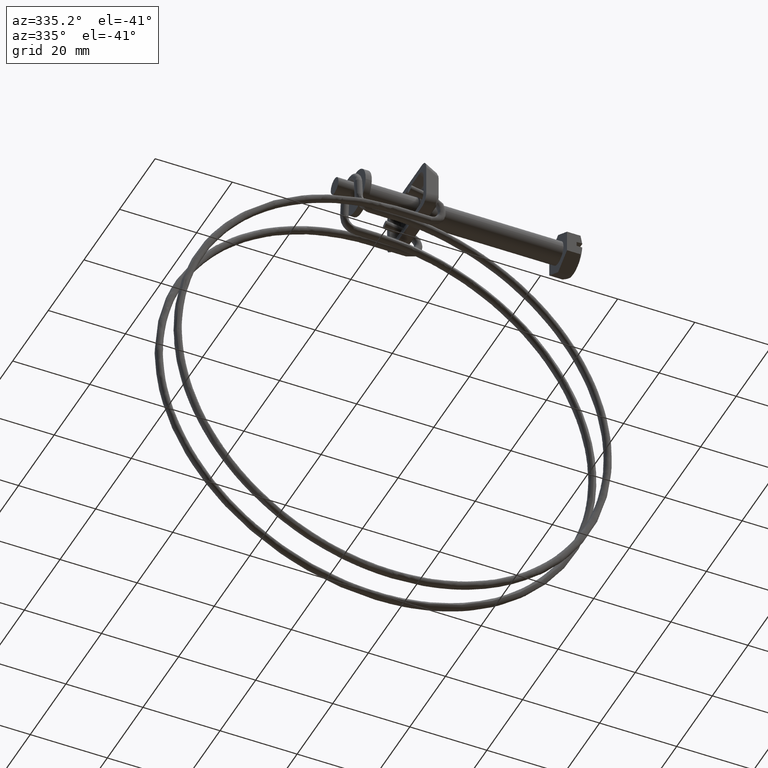
[diagram: clean part render]
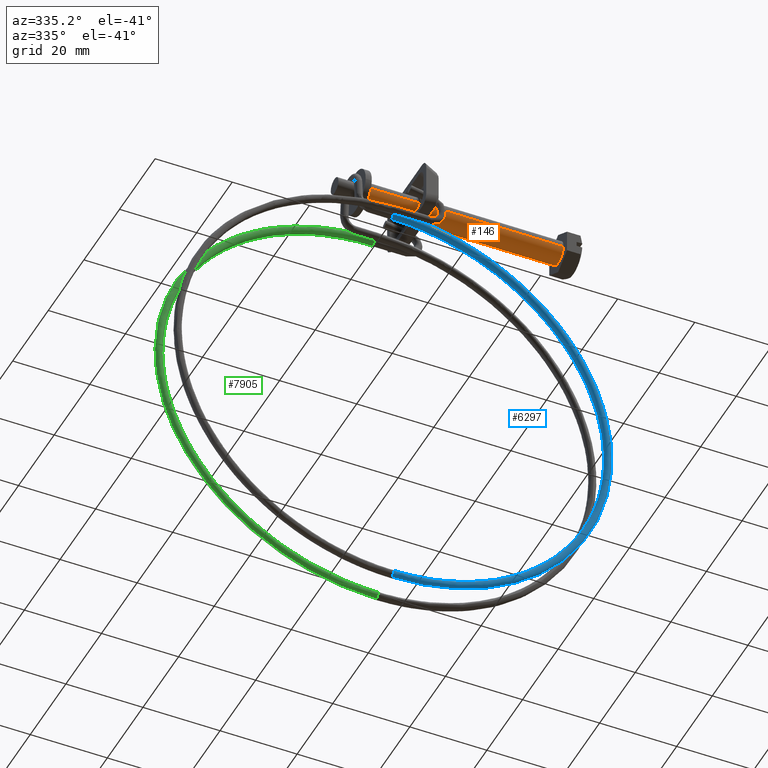
[diagram: same view with three faces highlighted in distinct colors, each labeled with its STEP entity id]
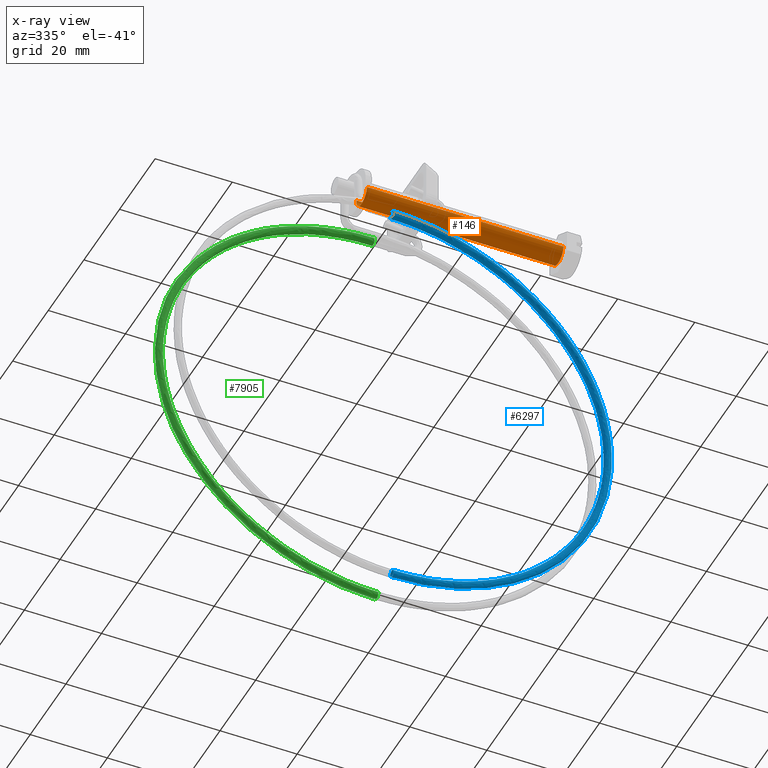
[diagram: x-ray of the same camera — body ghosted, the three highlighted faces saturated]
A machine part, auxiliary view with three faces highlighted in distinct colors.
The next image is the same camera in x-ray (body ghosted, the three faces saturated) — at least one of them is partly hidden behind the body in this view.
Their STEP definitions:

[orange] entity #146 — the highlighted face is a freeform B-spline surface patch.
#44=CARTESIAN_POINT('',(1.275000000000002,2.979028579091114,0.354102703970289));
#45=CARTESIAN_POINT('',(1.275000000000001,2.989162846345932,0.268844185913943));
#46=CARTESIAN_POINT('',(1.275000000000001,2.994404395265715,0.183145618604578));
#47=CARTESIAN_POINT('',(1.275000000000001,3.177550013870294,-2.811258776661137));
#48=CARTESIAN_POINT('',(1.275000000000001,0.183145618604578,-2.994404395265715));
#49=CARTESIAN_POINT('',(1.275000000000001,-2.811258776661137,-3.177550013870294));
#50=CARTESIAN_POINT('',(1.275000000000001,-2.994404395265715,-0.183145618604578));
#51=CARTESIAN_POINT('',(-52.306875000000026,2.979028579091114,0.354102703970289));
#52=CARTESIAN_POINT('',(-52.306875000000019,2.989162846345932,0.268844185913943));
#53=CARTESIAN_POINT('',(-52.306875000000012,2.994404395265715,0.183145618604578));
#54=CARTESIAN_POINT('',(-52.306875000000019,3.177550013870294,-2.811258776661137));
#55=CARTESIAN_POINT('',(-52.306875000000012,0.183145618604578,-2.994404395265715));
#56=CARTESIAN_POINT('',(-52.306875000000019,-2.811258776661137,-3.177550013870294));
#57=CARTESIAN_POINT('',(-52.306875000000012,-2.994404395265715,-0.183145618604578));
#65=(BOUNDED_SURFACE()B_SPLINE_SURFACE(2,1,((#44,#51),(#45,#52),(#46,#53),(#47,#54),(#48,#55),(#49,#56),(#50,#57)),.UNSPECIFIED.,.F.,.F.,.U.)B_SPLINE_SURFACE_WITH_KNOTS((3,2,2,3),(2,2),(0.0,0.198822509939094,5.169385258416424,10.139948006893750),(0.0,53.581875000000032),.UNSPECIFIED.)GEOMETRIC_REPRESENTATION_ITEM()RATIONAL_B_SPLINE_SURFACE(((0.977505800795127,0.977505800795127),(0.988284271247462,0.988284271247462),(1.0,1.0),(0.707106781186548,0.707106781186548),(1.0,1.0),(0.707106781186548,0.707106781186548),(1.0,1.0)))REPRESENTATION_ITEM('')SURFACE());
#66=CARTESIAN_POINT('',(1.703657E-015,2.979028579084389,0.354102704026857));
#67=VERTEX_POINT('',#66);
#68=CARTESIAN_POINT('',(0.0,0.0,-3.000000000000115));
#69=VERTEX_POINT('',#68);
#70=CARTESIAN_POINT('',(1.703657E-015,2.979028579084389,0.354102704026857));
#71=CARTESIAN_POINT('',(0.0,3.000000000000115,0.177672359012903));
#72=CARTESIAN_POINT('',(0.0,3.000000000000115,0.0));
#73=CARTESIAN_POINT('',(0.0,3.000000000000114,-3.000000000000114));
#74=CARTESIAN_POINT('',(0.0,0.0,-3.000000000000115));
#82=(BOUNDED_CURVE()B_SPLINE_CURVE(2,(#70,#71,#72,#73,#74),.UNSPECIFIED.,.F.,.U.)B_SPLINE_CURVE_WITH_KNOTS((3,2,3),(0.729562473509226,0.750000000000000,1.0),.UNSPECIFIED.)CURVE()GEOMETRIC_REPRESENTATION_ITEM()RATIONAL_B_SPLINE_CURVE((0.956026754175306,0.976055948326128,1.0,0.707106781186547,1.0))REPRESENTATION_ITEM(''));
#83=EDGE_CURVE('',#67,#69,#82,.T.);
#84=ORIENTED_EDGE('',*,*,#83,.T.);
#85=CARTESIAN_POINT('',(1.665335E-015,-2.994404395227453,-0.183145619230161));
#86=VERTEX_POINT('',#85);
#87=CARTESIAN_POINT('',(0.0,0.0,-3.000000000000115));
#88=CARTESIAN_POINT('',(0.0,-2.822118199535807,-3.000000000000114));
#89=CARTESIAN_POINT('',(1.665335E-015,-2.994404395227453,-0.183145619230161));
#97=(BOUNDED_CURVE()B_SPLINE_CURVE(2,(#87,#88,#89),.UNSPECIFIED.,.F.,.U.)B_SPLINE_CURVE_WITH_KNOTS((3,3),(0.0,0.239332962169872),.UNSPECIFIED.)CURVE()GEOMETRIC_REPRESENTATION_ITEM()RATIONAL_B_SPLINE_CURVE((1.0,0.719603993367632,0.976072041518686))REPRESENTATION_ITEM(''));
#98=EDGE_CURVE('',#69,#86,#97,.T.);
#99=ORIENTED_EDGE('',*,*,#98,.T.);
#100=CARTESIAN_POINT('',(-51.0,-2.994404395227453,-0.183145619230161));
#101=VERTEX_POINT('',#100);
#102=CARTESIAN_POINT('',(1.665335E-015,-2.994404395227453,-0.183145619230161));
#103=CARTESIAN_POINT('',(-51.0,-2.994404395227453,-0.183145619230161));
#104=QUASI_UNIFORM_CURVE('',1,(#102,#103),.UNSPECIFIED.,.F.,.U.);
#105=EDGE_CURVE('',#86,#101,#104,.T.);
#106=ORIENTED_EDGE('',*,*,#105,.T.);
#107=CARTESIAN_POINT('',(-51.0,0.0,-3.000000000000115));
#108=VERTEX_POINT('',#107);
#109=CARTESIAN_POINT('',(-51.0,0.0,-3.000000000000115));
#110=CARTESIAN_POINT('',(-51.000000000000007,-2.822118199535797,-3.000000000000114));
#111=CARTESIAN_POINT('',(-51.0,-2.994404395227453,-0.183145619230161));
#119=(BOUNDED_CURVE()B_SPLINE_CURVE(2,(#109,#110,#111),.UNSPECIFIED.,.F.,.U.)B_SPLINE_CURVE_WITH_KNOTS((3,3),(0.500000000000000,0.739332962169871),.UNSPECIFIED.)CURVE()GEOMETRIC_REPRESENTATION_ITEM()RATIONAL_B_SPLINE_CURVE((1.0,0.719603993367632,0.976072041518684))REPRESENTATION_ITEM(''));
#120=EDGE_CURVE('',#108,#101,#119,.T.);
#121=ORIENTED_EDGE('',*,*,#120,.F.);
#122=CARTESIAN_POINT('',(-51.0,2.979028579084390,0.354102704026858));
#123=VERTEX_POINT('',#122);
#124=CARTESIAN_POINT('',(-51.0,2.979028579084390,0.354102704026858));
#125=CARTESIAN_POINT('',(-51.0,3.000000000000115,0.177672359012904));
#126=CARTESIAN_POINT('',(-51.0,3.000000000000115,0.0));
#127=CARTESIAN_POINT('',(-50.999999999999993,3.000000000000114,-3.000000000000114));
#128=CARTESIAN_POINT('',(-51.0,0.0,-3.000000000000115));
#136=(BOUNDED_CURVE()B_SPLINE_CURVE(2,(#124,#125,#126,#127,#128),.UNSPECIFIED.,.F.,.U.)B_SPLINE_CURVE_WITH_KNOTS((3,2,3),(0.229562473509226,0.250000000000000,0.500000000000000),.UNSPECIFIED.)CURVE()GEOMETRIC_REPRESENTATION_ITEM()RATIONAL_B_SPLINE_CURVE((0.956026754175305,0.976055948326128,1.0,0.707106781186547,1.0))REPRESENTATION_ITEM(''));
#137=EDGE_CURVE('',#123,#108,#136,.T.);
#138=ORIENTED_EDGE('',*,*,#137,.F.);
#139=CARTESIAN_POINT('',(1.703657E-015,2.979028579084389,0.354102704026857));
#140=CARTESIAN_POINT('',(-51.0,2.979028579084390,0.354102704026858));
#141=QUASI_UNIFORM_CURVE('',1,(#139,#140),.UNSPECIFIED.,.F.,.U.);
#142=EDGE_CURVE('',#67,#123,#141,.T.);
#143=ORIENTED_EDGE('',*,*,#142,.F.);
#144=EDGE_LOOP('',(#84,#99,#106,#121,#138,#143));
#145=FACE_OUTER_BOUND('',#144,.T.);
#146=ADVANCED_FACE('',(#145),#65,.T.);

[blue] entity #6297 — the highlighted face is a freeform B-spline surface patch.
#5517=CARTESIAN_POINT('',(-45.149984246528383,-5.033984230270498,-8.529168529454086));
#5518=VERTEX_POINT('',#5517);
#5524=CARTESIAN_POINT('',(-45.150023195266257,-4.300001999997133,-6.850001000269010));
#5525=VERTEX_POINT('',#5524);
#5526=CARTESIAN_POINT('',(-45.150023195266257,-4.300001999997133,-6.850001000269010));
#5527=CARTESIAN_POINT('',(-45.150023195266272,-4.365451846946917,-6.850001000269011));
#5528=CARTESIAN_POINT('',(-45.150023045747560,-4.430900075520263,-6.856447088146706));
#5529=CARTESIAN_POINT('',(-45.150022453403942,-4.559284568506255,-6.881984351574516));
#5530=CARTESIAN_POINT('',(-45.150022010593702,-4.622217658359316,-6.901074895665468));
#5531=CARTESIAN_POINT('',(-45.150020848669897,-4.743153206365127,-6.951168039809021));
#5532=CARTESIAN_POINT('',(-45.150020129585059,-4.801152674148134,-6.982169401209919));
#5533=CARTESIAN_POINT('',(-45.150018442733142,-4.909991791885335,-7.054893374632335));
#5534=CARTESIAN_POINT('',(-45.150017475007772,-4.960828750577864,-7.096614188410303));
#5535=CARTESIAN_POINT('',(-45.150015328052497,-5.053388811789496,-7.189174249597036));
#5536=CARTESIAN_POINT('',(-45.150014148875719,-5.095109625578688,-7.240011208275889));
#5537=CARTESIAN_POINT('',(-45.150011624323419,-5.167833599020669,-7.348850325983813));
#5538=CARTESIAN_POINT('',(-45.150010279010310,-5.198834960429906,-7.406849793751216));
#5539=CARTESIAN_POINT('',(-45.150007473878077,-5.248928104586936,-7.527785341724491));
#5540=CARTESIAN_POINT('',(-45.150006014128302,-5.268018648683025,-7.590718431560624));
#5541=CARTESIAN_POINT('',(-45.150003036215800,-5.293555912117705,-7.719102924512079));
#5542=CARTESIAN_POINT('',(-45.150001518126722,-5.300001999997138,-7.784551153067816));
#5543=CARTESIAN_POINT('',(-45.149998481873482,-5.300001999997135,-7.915450846932179));
#5544=CARTESIAN_POINT('',(-45.149996963784382,-5.293555912117706,-7.980899075487916));
#5545=CARTESIAN_POINT('',(-45.149993985871873,-5.268018648683026,-8.109283568439372));
#5546=CARTESIAN_POINT('',(-45.149992526122112,-5.248928104586938,-8.172216658275501));
#5547=CARTESIAN_POINT('',(-45.149989720989844,-5.198834960429908,-8.293152206248779));
#5548=CARTESIAN_POINT('',(-45.149988375676763,-5.167833599020673,-8.351151674016187));
#5549=CARTESIAN_POINT('',(-45.149986100363719,-5.102289382286861,-8.449245526463013));
#5550=CARTESIAN_POINT('',(-45.149985140849729,-5.069655623589052,-8.490612328675056));
#5551=CARTESIAN_POINT('',(-45.149984246528383,-5.033984230270498,-8.529168529454086));
#5552=B_SPLINE_CURVE_WITH_KNOTS('',3,(#5526,#5527,#5528,#5529,#5530,#5531,#5532,#5533,#5534,#5535,#5536,#5537,#5538,#5539,#5540,#5541,#5542,#5543,#5544,#5545,#5546,#5547,#5548,#5549,#5550,#5551),.UNSPECIFIED.,.F.,.U.,(4,2,2,2,2,2,2,2,2,2,2,2,4),(0.0,0.031250000000000,0.062500000000000,0.093750000000000,0.125000000000000,0.156250000000000,0.187500000000000,0.218750000000000,0.250000000000000,0.281250000000000,0.312500000000000,0.343750000000000,0.368829616658411),.UNSPECIFIED.);
#5553=EDGE_CURVE('',#5525,#5518,#5552,.T.);
#5555=CARTESIAN_POINT('',(-45.150023193396613,-4.287435961514357,-6.850080066701368));
#5556=VERTEX_POINT('',#5555);
#5557=CARTESIAN_POINT('',(-45.150023193396613,-4.287435961514357,-6.850080066701368));
#5558=CARTESIAN_POINT('',(-45.150023194653834,-4.291624416094797,-6.850027403508757));
#5559=CARTESIAN_POINT('',(-45.150023195266257,-4.295813204731521,-6.850001000269010));
#5560=CARTESIAN_POINT('',(-45.150023195266257,-4.300001999997133,-6.850001000269010));
#5561=B_SPLINE_CURVE_WITH_KNOTS('',3,(#5557,#5558,#5559,#5560),.UNSPECIFIED.,.F.,.U.,(4,4),(0.997999997583634,1.0),.UNSPECIFIED.);
#5562=EDGE_CURVE('',#5556,#5525,#5561,.T.);
#5683=CARTESIAN_POINT('',(-45.149998382379913,-3.302437946023920,-7.919734138251699));
#5684=VERTEX_POINT('',#5683);
#5700=CARTESIAN_POINT('',(-45.149976804733733,-4.300001999997136,-8.850000999730989));
#5701=VERTEX_POINT('',#5700);
#5702=CARTESIAN_POINT('',(-45.149976804733733,-4.300001999997136,-8.850000999730989));
#5703=CARTESIAN_POINT('',(-45.149976804728666,-4.234552096202423,-8.850001003707032));
#5704=CARTESIAN_POINT('',(-45.149976954241893,-4.169103805564644,-8.843554920170462));
#5705=CARTESIAN_POINT('',(-45.149977546573773,-4.040719180389779,-8.818017665988659));
#5706=CARTESIAN_POINT('',(-45.149977989377767,-3.977786020415552,-8.798927126802363));
#5707=CARTESIAN_POINT('',(-45.149979151288640,-3.856850326801788,-8.748833992843419));
#5708=CARTESIAN_POINT('',(-45.149979870366757,-3.798850783535598,-8.717832636722228));
#5709=CARTESIAN_POINT('',(-45.149981557205052,-3.690011512366994,-8.645108674031631));
#5710=CARTESIAN_POINT('',(-45.149982524923502,-3.639174475730044,-8.603387865705523));
#5711=CARTESIAN_POINT('',(-45.149984671864956,-3.546614259159843,-8.510827815385410));
#5712=CARTESIAN_POINT('',(-45.149985851034870,-3.504893367960352,-8.459990862121057));
#5713=CARTESIAN_POINT('',(-45.149988375573727,-3.432169243202981,-8.351151754996955));
#5714=CARTESIAN_POINT('',(-45.149989720880271,-3.401167807892398,-8.293152292398613));
#5715=CARTESIAN_POINT('',(-45.149992525999927,-3.351074522278122,-8.172216754319623));
#5716=CARTESIAN_POINT('',(-45.149993985743713,-3.331983910629633,-8.109283669208471));
#5717=CARTESIAN_POINT('',(-45.149996434416281,-3.310984992358337,-8.003715506919454));
#5718=CARTESIAN_POINT('',(-45.149997406241951,-3.305381541010549,-7.961817775016692));
#5719=CARTESIAN_POINT('',(-45.149998382379913,-3.302437946023920,-7.919734138251699));
#5720=B_SPLINE_CURVE_WITH_KNOTS('',3,(#5702,#5703,#5704,#5705,#5706,#5707,#5708,#5709,#5710,#5711,#5712,#5713,#5714,#5715,#5716,#5717,#5718,#5719),.UNSPECIFIED.,.F.,.U.,(4,2,2,2,2,2,2,2,4),(0.500000000000000,0.531250000000000,0.562500000000000,0.593750000000000,0.625000000000000,0.656250000000000,0.687500000000000,0.718750000000000,0.738892582117169),.UNSPECIFIED.);
#5721=EDGE_CURVE('',#5701,#5684,#5720,.T.);
#5723=CARTESIAN_POINT('',(-45.149984246528383,-5.033984230270498,-8.529168529454086));
#5724=CARTESIAN_POINT('',(-45.149984026512122,-5.025207223097874,-8.538653924320116));
#5725=CARTESIAN_POINT('',(-45.149983810430598,-5.016246878140431,-8.547969684042037));
#5726=CARTESIAN_POINT('',(-45.149982524992353,-4.960828750577867,-8.603387811589695));
#5727=CARTESIAN_POINT('',(-45.149981557266983,-4.909991791885341,-8.645108625367662));
#5728=CARTESIAN_POINT('',(-45.149979870415031,-4.801152674148138,-8.717832598790080));
#5729=CARTESIAN_POINT('',(-45.149979151330207,-4.743153206365133,-8.748833960190980));
#5730=CARTESIAN_POINT('',(-45.149977989406374,-4.622217658359322,-8.798927104334533));
#5731=CARTESIAN_POINT('',(-45.149977546596112,-4.559284568506262,-8.818017648425485));
#5732=CARTESIAN_POINT('',(-45.149976954252473,-4.430900075520269,-8.843554911853291));
#5733=CARTESIAN_POINT('',(-45.149976804733740,-4.365451846946924,-8.850000999730991));
#5734=CARTESIAN_POINT('',(-45.149976804733733,-4.300001999997136,-8.850000999730989));
#5735=B_SPLINE_CURVE_WITH_KNOTS('',3,(#5723,#5724,#5725,#5726,#5727,#5728,#5729,#5730,#5731,#5732,#5733,#5734),.UNSPECIFIED.,.F.,.U.,(4,2,2,2,2,4),(0.368829616658411,0.375000000000000,0.406250000000000,0.437500000000000,0.468750000000000,0.500000000000000),.UNSPECIFIED.);
#5736=EDGE_CURVE('',#5518,#5701,#5735,.T.);
#6144=CARTESIAN_POINT('',(-45.149999999935943,-3.302485887030367,-119.780271342113590));
#6145=VERTEX_POINT('',#6144);
#6146=CARTESIAN_POINT('',(-45.149999999990129,-4.287435984471163,-120.849920191922910));
#6147=VERTEX_POINT('',#6146);
#6159=CARTESIAN_POINT('',(-45.149999999935943,-3.302485887030366,-119.780271342113560));
#6160=CARTESIAN_POINT('',(10.780266748424555,-3.302485887030020,-119.780271342049470));
#6161=CARTESIAN_POINT('',(10.780266748424541,-3.302461916526797,-63.850002740182589));
#6162=CARTESIAN_POINT('',(10.780266748424543,-3.302437946024267,-7.919735755871773));
#6163=CARTESIAN_POINT('',(-45.149998382379920,-3.302437946023921,-7.919734138251701));
#6171=(BOUNDED_CURVE()B_SPLINE_CURVE(2,(#6159,#6160,#6161,#6162,#6163),.UNSPECIFIED.,.F.,.U.)B_SPLINE_CURVE_WITH_KNOTS((3,2,3),(-3.793812489433229,-2.0,-0.206187546034046),.UNSPECIFIED.)CURVE()GEOMETRIC_REPRESENTATION_ITEM()RATIONAL_B_SPLINE_CURVE((0.913747050125409,0.668278774897888,0.977505800795127,0.668278781011928,0.913747040418608))REPRESENTATION_ITEM(''));
#6172=EDGE_CURVE('',#6145,#5684,#6171,.T.);
#6176=CARTESIAN_POINT('',(-45.149999999990129,-4.287435984471163,-120.849920191922920));
#6177=CARTESIAN_POINT('',(11.849921044203803,-4.287435984471165,-120.849920191912840));
#6178=CARTESIAN_POINT('',(11.849921044187241,-4.287435972992762,-63.850000129309592));
#6179=CARTESIAN_POINT('',(11.849921044170671,-4.287435961514353,-6.850056873328644));
#6180=CARTESIAN_POINT('',(-45.150023193396606,-4.287435961514357,-6.850080066701368));
#6188=(BOUNDED_CURVE()B_SPLINE_CURVE(2,(#6176,#6177,#6178,#6179,#6180),.UNSPECIFIED.,.F.,.U.)B_SPLINE_CURVE_WITH_KNOTS((3,2,3),(-3.793812489434421,-2.0,-0.206187011560386),.UNSPECIFIED.)CURVE()GEOMETRIC_REPRESENTATION_ITEM()RATIONAL_B_SPLINE_CURVE((0.934774043675721,0.683657093752373,1.0,0.683657005751675,0.934774183387873))REPRESENTATION_ITEM(''));
#6189=EDGE_CURVE('',#6147,#5556,#6188,.T.);
#6194=CARTESIAN_POINT('',(-53.220581188782397,-4.266618133467630,-120.275411002451250));
#6195=CARTESIAN_POINT('',(11.849659425907566,-4.266618133467630,-129.582470708914090));
#6196=CARTESIAN_POINT('',(11.849659425907559,-4.266618133467632,-63.850001000000042));
#6197=CARTESIAN_POINT('',(11.849659425907539,-4.266618133467630,1.882494594913314));
#6198=CARTESIAN_POINT('',(-53.220603185711774,-4.266618133467630,-7.424594143795318));
#6199=CARTESIAN_POINT('',(-53.220599629841495,-4.276981970721224,-120.275539932982540));
#6200=CARTESIAN_POINT('',(11.849789668583252,-4.276981970721224,-129.582620905824400));
#6201=CARTESIAN_POINT('',(11.849789668583238,-4.276981970721225,-63.850001000000020));
#6202=CARTESIAN_POINT('',(11.849789668583227,-4.276981970721225,1.882644791882771));
#6203=CARTESIAN_POINT('',(-53.220621626821149,-4.276981970721224,-7.424465213271176));
#6204=CARTESIAN_POINT('',(-53.222397456771425,-5.287357004320464,-120.288109426958400));
#6205=CARTESIAN_POINT('',(11.862487084087164,-5.287357004320462,-129.597263668402260));
#6206=CARTESIAN_POINT('',(11.862487084087142,-5.287357004320464,-63.850001000000006));
#6207=CARTESIAN_POINT('',(11.862487084087135,-5.287357004320461,1.897287560227058));
#6208=CARTESIAN_POINT('',(-53.222419458651160,-5.287357004320465,-7.411895719996198));
#6209=CARTESIAN_POINT('',(-53.080818646460997,-5.299923044203815,-119.298262198790010));
#6210=CARTESIAN_POINT('',(10.862566039883333,-5.299923044203816,-128.444146607503480));
#6211=CARTESIAN_POINT('',(10.862566039883330,-5.299923044203815,-63.850001000000013));
#6212=CARTESIAN_POINT('',(10.862566039883314,-5.299923044203815,0.744170045221102));
#6213=CARTESIAN_POINT('',(-53.080840262457855,-5.299923044203815,-8.401742892971354));
#6214=CARTESIAN_POINT('',(-52.939239836150570,-5.312489084087169,-118.308414970621540));
#6215=CARTESIAN_POINT('',(9.862644995679526,-5.312489084087168,-127.291029546604720));
#6216=CARTESIAN_POINT('',(9.862644995679510,-5.312489084087169,-63.850001000000006));
#6217=CARTESIAN_POINT('',(9.862644995679505,-5.312489084087168,-0.408947469784854));
#6218=CARTESIAN_POINT('',(-52.939261066264564,-5.312489084087169,-9.391590065946508));
#6219=CARTESIAN_POINT('',(-52.937460610693435,-4.312568039883353,-118.295975528707910));
#6220=CARTESIAN_POINT('',(9.850078955796178,-4.312568039883353,-127.276538287458370));
#6221=CARTESIAN_POINT('',(9.850078955796157,-4.312568039883353,-63.850001000000013));
#6222=CARTESIAN_POINT('',(9.850078955796150,-4.312568039883353,-0.423438734637961));
#6223=CARTESIAN_POINT('',(-52.937481835957996,-4.312568039883353,-9.404029507166522));
#6224=CARTESIAN_POINT('',(-52.935780393012585,-3.368289162160302,-118.284228298946330));
#6225=CARTESIAN_POINT('',(9.838212172806395,-3.368289162160302,-127.262853417035030));
#6226=CARTESIAN_POINT('',(9.838212172806381,-3.368289162160303,-63.850001000000013));
#6227=CARTESIAN_POINT('',(9.838212172806369,-3.368289162160303,-0.437123610450506));
#6228=CARTESIAN_POINT('',(-52.935801613697627,-3.368289162160303,-9.415776736273086));
#6229=CARTESIAN_POINT('',(-53.070671953200517,-3.301692778375506,-119.227321666255950));
#6230=CARTESIAN_POINT('',(10.790903535459181,-3.301692778375505,-128.361504825977620));
#6231=CARTESIAN_POINT('',(10.790903535459160,-3.301692778375506,-63.850001000000006));
#6232=CARTESIAN_POINT('',(10.790903535459154,-3.301692778375504,0.661528231150173));
#6233=CARTESIAN_POINT('',(-53.070693541541864,-3.301692778375508,-8.472683421549849));
#6234=CARTESIAN_POINT('',(-53.072165826066787,-3.300955248684328,-119.237766067594440));
#6235=CARTESIAN_POINT('',(10.801454230955725,-3.300955248684329,-128.373671973625870));
#6236=CARTESIAN_POINT('',(10.801454230955709,-3.300955248684329,-63.850001000000013));
#6237=CARTESIAN_POINT('',(10.801454230955700,-3.300955248684328,0.673695383589941));
#6238=CARTESIAN_POINT('',(-53.072187418479785,-3.300955248684330,-8.462239020793696));
#6246=(BOUNDED_SURFACE()B_SPLINE_SURFACE(2,2,((#6194,#6199,#6204,#6209,#6214,#6219,#6224,#6229,#6234),(#6195,#6200,#6205,#6210,#6215,#6220,#6225,#6230,#6235),(#6196,#6201,#6206,#6211,#6216,#6221,#6226,#6231,#6236),(#6197,#6202,#6207,#6212,#6217,#6222,#6227,#6232,#6237),(#6198,#6203,#6208,#6213,#6218,#6223,#6228,#6233,#6238)),.UNSPECIFIED.,.F.,.F.,.U.)B_SPLINE_SURFACE_WITH_KNOTS((3,2,3),(3,1,2,2,1,3),(0.0,104.072587771044200,208.145202266313790),(0.0,0.024603701993969,1.681457951486350,3.338312200978731,4.928892280491416,4.953414280444298),.UNSPECIFIED.)GEOMETRIC_REPRESENTATION_ITEM()RATIONAL_B_SPLINE_SURFACE(((0.999227528483232,0.994919005752852,0.700467390059671,0.990610483022471,0.700467390059671,0.990610483022471,0.712073113778183,0.972278171583317,0.976228849683706),(0.657726468687223,0.654890448501697,0.461072107965082,0.652054428316171,0.461072107965082,0.652054428316171,0.468711400779125,0.639987460461460,0.642587934809713),(1.008698722261114,1.004349361130557,0.707106781186548,1.0,0.707106781186548,1.0,0.718822509939086,0.981493925459763,0.985482050124398),(0.657726378562995,0.654890358766071,0.461072044787196,0.652054338969148,0.461072044787196,0.652054338969148,0.468711336554474,0.639987372767900,0.642587846759825),(0.999227703867622,0.994919180381010,0.700467513005689,0.990610656894398,0.700467513005689,0.990610656894398,0.712073238761238,0.972278342237557,0.976229021031368)))REPRESENTATION_ITEM('')SURFACE());
#6247=CARTESIAN_POINT('',(-45.150000000000013,-4.300002000000009,-118.850001000000010));
#6248=VERTEX_POINT('',#6247);
#6249=CARTESIAN_POINT('',(-45.150000000000013,-4.300002000000009,-118.850001000000010));
#6250=CARTESIAN_POINT('',(-45.149999999991010,-4.038195655369277,-118.850000495566110));
#6251=CARTESIAN_POINT('',(-45.149999999978633,-3.777998799462706,-118.957772896960290));
#6252=CARTESIAN_POINT('',(-45.149999999955142,-3.424196145409652,-119.311556064556400));
#6253=CARTESIAN_POINT('',(-45.149999999944150,-3.319730377688063,-119.542534340343100));
#6254=CARTESIAN_POINT('',(-45.149999999935943,-3.302485887030367,-119.780271342113590));
#6255=B_SPLINE_CURVE_WITH_KNOTS('',3,(#6249,#6250,#6251,#6252,#6253,#6254),.UNSPECIFIED.,.F.,.U.,(4,2,4),(0.500000000000000,0.625000000000000,0.738888458198402),.UNSPECIFIED.);
#6256=EDGE_CURVE('',#6248,#6145,#6255,.T.);
#6257=ORIENTED_EDGE('',*,*,#6256,.F.);
#6258=CARTESIAN_POINT('',(-45.150000000000013,-5.028951109210285,-120.534536542634600));
#6259=VERTEX_POINT('',#6258);
#6260=CARTESIAN_POINT('',(-45.150000000000013,-5.028951109210285,-120.534536542634600));
#6261=CARTESIAN_POINT('',(-45.150000000000013,-5.200678748661184,-120.351169005261300));
#6262=CARTESIAN_POINT('',(-45.150000000000013,-5.300002000000000,-120.101327862820100));
#6263=CARTESIAN_POINT('',(-45.150000000000013,-5.300002000000000,-119.588201612201000));
#6264=CARTESIAN_POINT('',(-45.150000000000013,-5.192228903609820,-119.328014341236600));
#6265=CARTESIAN_POINT('',(-45.150000000000013,-4.821988658763289,-118.957774096390200));
#6266=CARTESIAN_POINT('',(-45.150000000000013,-4.561801387799160,-118.850001000000010));
#6267=CARTESIAN_POINT('',(-45.150000000000013,-4.300002000000009,-118.850001000000010));
#6268=B_SPLINE_CURVE_WITH_KNOTS('',3,(#6260,#6261,#6262,#6263,#6264,#6265,#6266,#6267),.UNSPECIFIED.,.F.,.U.,(4,2,2,4),(0.130000262351228,0.250000000000000,0.375000000000000,0.500000000000000),.UNSPECIFIED.);
#6269=EDGE_CURVE('',#6259,#6248,#6268,.T.);
#6270=ORIENTED_EDGE('',*,*,#6269,.F.);
#6271=CARTESIAN_POINT('',(-45.150000000000013,-4.300002000000009,-120.850001000000010));
#6272=VERTEX_POINT('',#6271);
#6273=CARTESIAN_POINT('',(-45.150000000000013,-4.300002000000009,-120.850001000000010));
#6274=CARTESIAN_POINT('',(-45.150000000000013,-4.561801387799160,-120.850001000000010));
#6275=CARTESIAN_POINT('',(-45.150000000000013,-4.821988658763289,-120.742227903609800));
#6276=CARTESIAN_POINT('',(-45.150000000000013,-5.014513974615417,-120.549702587757590));
#6277=CARTESIAN_POINT('',(-45.150000000000013,-5.021795399815350,-120.542177274286600));
#6278=CARTESIAN_POINT('',(-45.150000000000013,-5.028951109210285,-120.534536542634600));
#6279=B_SPLINE_CURVE_WITH_KNOTS('',3,(#6273,#6274,#6275,#6276,#6277,#6278),.UNSPECIFIED.,.F.,.U.,(4,2,4),(0.0,0.125000000000000,0.130000262351228),.UNSPECIFIED.);
#6280=EDGE_CURVE('',#6272,#6259,#6279,.T.);
#6281=ORIENTED_EDGE('',*,*,#6280,.F.);
#6282=CARTESIAN_POINT('',(-45.149999999990129,-4.287435984471163,-120.849920191922910));
#6283=CARTESIAN_POINT('',(-45.149999999993419,-4.291624042898426,-120.849974639911810));
#6284=CARTESIAN_POINT('',(-45.149999999996723,-4.295812815059945,-120.850001617475900));
#6285=CARTESIAN_POINT('',(-45.150000000000013,-4.300002000000009,-120.850001000000010));
#6286=B_SPLINE_CURVE_WITH_KNOTS('',3,(#6282,#6283,#6284,#6285),.UNSPECIFIED.,.F.,.U.,(4,4),(0.997999815404182,1.0),.UNSPECIFIED.);
#6287=EDGE_CURVE('',#6147,#6272,#6286,.T.);
#6288=ORIENTED_EDGE('',*,*,#6287,.F.);
#6289=ORIENTED_EDGE('',*,*,#6189,.T.);
#6290=ORIENTED_EDGE('',*,*,#5562,.T.);
#6291=ORIENTED_EDGE('',*,*,#5553,.T.);
#6292=ORIENTED_EDGE('',*,*,#5736,.T.);
#6293=ORIENTED_EDGE('',*,*,#5721,.T.);
#6294=ORIENTED_EDGE('',*,*,#6172,.F.);
#6295=EDGE_LOOP('',(#6257,#6270,#6281,#6288,#6289,#6290,#6291,#6292,#6293,#6294));
#6296=FACE_OUTER_BOUND('',#6295,.T.);
#6297=ADVANCED_FACE('',(#6296),#6246,.T.);

[green] entity #7905 — the highlighted face is a freeform B-spline surface patch.
#5958=CARTESIAN_POINT('',(-45.150000000000013,5.975868420241465,-6.907995056497066));
#5959=VERTEX_POINT('',#5958);
#5965=CARTESIAN_POINT('',(-45.150000000000013,5.310976448142015,-7.892637509185571));
#5966=VERTEX_POINT('',#5965);
#5967=CARTESIAN_POINT('',(-45.150000000000013,5.310976448142015,-7.892637509185571));
#5968=CARTESIAN_POINT('',(-45.150000000000013,5.309785185116463,-7.866484776359789));
#5969=CARTESIAN_POINT('',(-45.150000000000013,5.309644575594670,-7.840279783131936));
#5970=CARTESIAN_POINT('',(-45.150000000000013,5.319957059163599,-7.552379721659783));
#5971=CARTESIAN_POINT('',(-45.150000000000013,5.436972750023571,-7.296118689217270));
#5972=CARTESIAN_POINT('',(-45.150000000000013,5.728292555442470,-7.024810893572020));
#5973=CARTESIAN_POINT('',(-45.150000000000013,5.847547963914557,-6.953617412477247));
#5974=CARTESIAN_POINT('',(-45.150000000000013,5.975868420241465,-6.907995056497066));
#5975=B_SPLINE_CURVE_WITH_KNOTS('',3,(#5967,#5968,#5969,#5970,#5971,#5972,#5973,#5974),.UNSPECIFIED.,.F.,.U.,(4,2,2,4),(0.737494793451711,0.750000000000000,0.875000000000000,0.940036109681468),.UNSPECIFIED.);
#5976=EDGE_CURVE('',#5966,#5959,#5975,.T.);
#6055=CARTESIAN_POINT('',(-45.150000000000013,6.274124154056111,-8.849357056546696));
#6056=VERTEX_POINT('',#6055);
#6057=CARTESIAN_POINT('',(-45.150000000000013,6.274124154056111,-8.849357056546696));
#6058=CARTESIAN_POINT('',(-45.150000000000013,6.012484647438876,-8.839963733500847));
#6059=CARTESIAN_POINT('',(-45.150000000000013,5.756320006590985,-8.722924707046024));
#6060=CARTESIAN_POINT('',(-45.150000000000013,5.417423683269938,-8.358811485096949));
#6061=CARTESIAN_POINT('',(-45.150000000000013,5.321684464792924,-8.127829179653764));
#6062=CARTESIAN_POINT('',(-45.150000000000013,5.310976448142015,-7.892637509185571));
#6063=B_SPLINE_CURVE_WITH_KNOTS('',3,(#6057,#6058,#6059,#6060,#6061,#6062),.UNSPECIFIED.,.F.,.U.,(4,2,4),(0.500000000000000,0.625000000000000,0.737494793451711),.UNSPECIFIED.);
#6064=EDGE_CURVE('',#6056,#5966,#6063,.T.);
#6066=CARTESIAN_POINT('',(-45.150000000000013,7.063047293310760,-7.192061947471613));
#6067=VERTEX_POINT('',#6066);
#6068=CARTESIAN_POINT('',(-45.150000000000013,7.063047293310760,-7.192061947471613));
#6069=CARTESIAN_POINT('',(-45.150000000000013,7.228084872618401,-7.381473228365195));
#6070=CARTESIAN_POINT('',(-45.150000000000013,7.318379524562656,-7.634717340918241));
#6071=CARTESIAN_POINT('',(-45.150000000000013,7.299967855068440,-8.147513167247210));
#6072=CARTESIAN_POINT('',(-45.150000000000013,7.182928284423550,-8.403665846679910));
#6073=CARTESIAN_POINT('',(-45.150000000000013,6.799641728569591,-8.760382952955519));
#6074=CARTESIAN_POINT('',(-45.150000000000013,6.535754957853460,-8.858750775531320));
#6075=CARTESIAN_POINT('',(-45.150000000000013,6.274124154056111,-8.849357056546696));
#6076=B_SPLINE_CURVE_WITH_KNOTS('',3,(#6068,#6069,#6070,#6071,#6072,#6073,#6074,#6075),.UNSPECIFIED.,.F.,.U.,(4,2,2,4),(0.130000262351488,0.250000000000000,0.375000000000000,0.500000000000000),.UNSPECIFIED.);
#6077=EDGE_CURVE('',#6067,#6056,#6076,.T.);
#6079=CARTESIAN_POINT('',(-45.150000000000013,6.345886880956230,-6.850644943452905));
#6080=VERTEX_POINT('',#6079);
#6090=CARTESIAN_POINT('',(-45.150000000000013,5.975868420241465,-6.907995056497066));
#6091=CARTESIAN_POINT('',(-45.150000000000013,6.094243663932693,-6.866122050416867));
#6092=CARTESIAN_POINT('',(-45.150000000000013,6.220325795856418,-6.845986976392004));
#6093=CARTESIAN_POINT('',(-45.150000000000013,6.345886880956230,-6.850644943452905));
#6094=B_SPLINE_CURVE_WITH_KNOTS('',3,(#6090,#6091,#6092,#6093),.UNSPECIFIED.,.F.,.U.,(4,4),(0.940036109681468,1.0),.UNSPECIFIED.);
#6095=EDGE_CURVE('',#5959,#6080,#6094,.T.);
#6670=CARTESIAN_POINT('',(-45.150000000000112,3.302485887032507,-119.919730657955500));
#6671=VERTEX_POINT('',#6670);
#6687=CARTESIAN_POINT('',(-45.149999997946651,4.306285019938812,-120.849961522101910));
#6688=VERTEX_POINT('',#6687);
#6689=CARTESIAN_POINT('',(-45.150000000000112,3.302485887032507,-119.919730657955500));
#6690=CARTESIAN_POINT('',(-45.149999999737013,3.320535383565215,-120.157462601634090));
#6691=CARTESIAN_POINT('',(-45.149999999384818,3.426078744590592,-120.388434106584700));
#6692=CARTESIAN_POINT('',(-45.149999998632033,3.782184756065111,-120.742202801552590));
#6693=CARTESIAN_POINT('',(-45.149999998234897,4.043596731422727,-120.849967568025600));
#6694=CARTESIAN_POINT('',(-45.149999997946651,4.306285019938812,-120.849961522101910));
#6695=B_SPLINE_CURVE_WITH_KNOTS('',3,(#6689,#6690,#6691,#6692,#6693,#6694),.UNSPECIFIED.,.F.,.U.,(4,2,4),(0.761111541812609,0.875000000000000,1.0),.UNSPECIFIED.);
#6696=EDGE_CURVE('',#6671,#6688,#6695,.T.);
#6784=CARTESIAN_POINT('',(-45.150000000000063,5.028951109207434,-120.534536542634600));
#6785=VERTEX_POINT('',#6784);
#6795=CARTESIAN_POINT('',(-45.150000000000119,4.300001999997132,-118.850001000000010));
#6796=VERTEX_POINT('',#6795);
#6797=CARTESIAN_POINT('',(-45.150000000000063,5.028951109207434,-120.534536542634600));
#6798=CARTESIAN_POINT('',(-45.150000000000119,5.200678748658326,-120.351169005261300));
#6799=CARTESIAN_POINT('',(-45.150000000000126,5.300001999997135,-120.101327862820100));
#6800=CARTESIAN_POINT('',(-45.150000000000119,5.300001999997135,-119.588201612200900));
#6801=CARTESIAN_POINT('',(-45.150000000000126,5.192228903606946,-119.328014341236700));
#6802=CARTESIAN_POINT('',(-45.150000000000119,4.821988658760414,-118.957774096390200));
#6803=CARTESIAN_POINT('',(-45.150000000000126,4.561801387796283,-118.850001000000010));
#6804=CARTESIAN_POINT('',(-45.150000000000119,4.300001999997132,-118.850001000000010));
#6805=B_SPLINE_CURVE_WITH_KNOTS('',3,(#6797,#6798,#6799,#6800,#6801,#6802,#6803,#6804),.UNSPECIFIED.,.F.,.U.,(4,2,2,4),(0.130000262351236,0.250000000000000,0.375000000000000,0.500000000000000),.UNSPECIFIED.);
#6806=EDGE_CURVE('',#6785,#6796,#6805,.T.);
#6808=CARTESIAN_POINT('',(-45.150000000000119,4.300001999997132,-118.850001000000010));
#6809=CARTESIAN_POINT('',(-45.150000000000119,4.038196562360386,-118.850001438668600));
#6810=CARTESIAN_POINT('',(-45.150000000000119,3.778000607899887,-118.957775164691700));
#6811=CARTESIAN_POINT('',(-45.150000000000112,3.407742631723138,-119.328016695221810));
#6812=CARTESIAN_POINT('',(-45.150000000000112,3.299960596685667,-119.588204614319690));
#6813=CARTESIAN_POINT('',(-45.150000000000112,3.299953531836516,-119.873276473137390));
#6814=CARTESIAN_POINT('',(-45.150000000000112,3.300804581621534,-119.896535733558300));
#6815=CARTESIAN_POINT('',(-45.150000000000112,3.302485887032507,-119.919730657955500));
#6816=B_SPLINE_CURVE_WITH_KNOTS('',3,(#6808,#6809,#6810,#6811,#6812,#6813,#6814,#6815),.UNSPECIFIED.,.F.,.U.,(4,2,2,4),(0.500000000000000,0.625000000000000,0.750000000000000,0.761111541812609),.UNSPECIFIED.);
#6817=EDGE_CURVE('',#6796,#6671,#6816,.T.);
#7693=CARTESIAN_POINT('',(-44.259328939632063,5.010253497833209,-120.554501352842000));
#7694=CARTESIAN_POINT('',(-44.262285257257098,5.193329166705860,-120.369615801803210));
#7695=CARTESIAN_POINT('',(-44.270528967205237,5.407328013802967,-119.848740019036700));
#7696=CARTESIAN_POINT('',(-44.282734147828322,5.083933142436737,-119.066070311957900));
#7697=CARTESIAN_POINT('',(-44.287603980022418,4.299997528203455,-118.742034163651000));
#7698=CARTESIAN_POINT('',(-44.282292516733321,3.516043214007845,-119.066042282248800));
#7699=CARTESIAN_POINT('',(-44.269884226280382,3.191964672974015,-119.850020178290510));
#7700=CARTESIAN_POINT('',(-44.257487293511353,3.521035935047055,-120.644996877871510));
#7701=CARTESIAN_POINT('',(-44.254273993927463,4.060936873518643,-120.859214330183600));
#7702=CARTESIAN_POINT('',(-44.254495634473983,4.333648213808706,-120.850000999957600));
#7703=CARTESIAN_POINT('',(-44.556215151507999,5.010273858828110,-120.553368109057000));
#7704=CARTESIAN_POINT('',(-44.558186043798898,5.193349460117233,-120.368486319668700));
#7705=CARTESIAN_POINT('',(-44.563681889119422,5.407348118758236,-119.847621026172010));
#7706=CARTESIAN_POINT('',(-44.571818733481507,5.083952968376429,-119.064966848660300));
#7707=CARTESIAN_POINT('',(-44.575065311132107,4.300017242819163,-118.740936896342500));
#7708=CARTESIAN_POINT('',(-44.571524310678811,3.516063050049358,-119.064938256396100));
#7709=CARTESIAN_POINT('',(-44.563252058810427,3.191984792676451,-119.848900364168900));
#7710=CARTESIAN_POINT('',(-44.554987378784602,3.521056338148418,-120.643861290203700));
#7711=CARTESIAN_POINT('',(-44.552845163981743,4.060957350075579,-120.858074654173090));
#7712=CARTESIAN_POINT('',(-44.552992925386178,4.333668685297817,-120.848861606069800));
#7713=CARTESIAN_POINT('',(-52.275584159603440,5.009195824800353,-120.613475384131800));
#7714=CARTESIAN_POINT('',(-52.251932896095518,5.192275004428874,-120.428394082840400));
#7715=CARTESIAN_POINT('',(-52.185981201786781,5.406283641319897,-119.906972445778610));
#7716=CARTESIAN_POINT('',(-52.088336773909667,5.082903264243598,-119.123494569078400));
#7717=CARTESIAN_POINT('',(-52.049376926193482,4.298973433263909,-118.799135955423590));
#7718=CARTESIAN_POINT('',(-52.091869930606492,3.515012811534199,-119.123495762960500));
#7719=CARTESIAN_POINT('',(-52.191139286753391,3.190919535072145,-119.908295269467200));
#7720=CARTESIAN_POINT('',(-52.290317778654483,3.519976075133582,-120.704092835659300));
#7721=CARTESIAN_POINT('',(-52.316024960640220,4.059873197589487,-120.918523062958600));
#7722=CARTESIAN_POINT('',(-52.314251782104300,4.332584801058181,-120.909295060138310));
#7723=CARTESIAN_POINT('',(-59.989125295082999,5.036734941687772,-119.078925041455800));
#7724=CARTESIAN_POINT('',(-59.939871399024923,5.219722710706344,-118.898937371028000));
#7725=CARTESIAN_POINT('',(-59.802526605963628,5.433476448522419,-118.391719358387600));
#7726=CARTESIAN_POINT('',(-59.599181508118221,5.109718681931899,-117.629270588445290));
#7727=CARTESIAN_POINT('',(-59.518047395048320,4.325638273552998,-117.313302535808210));
#7728=CARTESIAN_POINT('',(-59.606539327696773,3.541841884486499,-117.628510884295100));
#7729=CARTESIAN_POINT('',(-59.813268348488883,3.218132277727306,-118.391931339949710));
#7730=CARTESIAN_POINT('',(-60.019808143918532,3.547572136372242,-119.166369416673500));
#7731=CARTESIAN_POINT('',(-60.073343502304162,4.087568615500739,-119.375263234383790));
#7732=CARTESIAN_POINT('',(-60.069650847416028,4.360273365776037,-119.366417107549590));
#7733=CARTESIAN_POINT('',(-73.700846116569338,5.138660119473656,-113.399522088555900));
#7734=CARTESIAN_POINT('',(-73.606083483113693,5.321309602588504,-113.238384147095300));
#7735=CARTESIAN_POINT('',(-73.341837294858877,5.534120028068431,-112.783728719675300));
#7736=CARTESIAN_POINT('',(-72.950609015904675,5.208965645446650,-112.099101204701800));
#7737=CARTESIAN_POINT('',(-72.794510050380637,4.424327991253411,-111.814183609776900));
#7738=CARTESIAN_POINT('',(-72.964765182672522,3.641139383025812,-112.095525623680300));
#7739=CARTESIAN_POINT('',(-73.362504001257449,3.318849633773224,-112.779829779230790));
#7740=CARTESIAN_POINT('',(-73.759878757370174,3.649708050283761,-113.475223973748100));
#7741=CARTESIAN_POINT('',(-73.862878762486943,4.190072221289226,-113.663629523841610));
#7742=CARTESIAN_POINT('',(-73.855774234230637,4.462751609647635,-113.656196595768510));
#7743=CARTESIAN_POINT('',(-86.280583553521979,5.289524106333608,-104.993185293167500));
#7744=CARTESIAN_POINT('',(-86.144072672984151,5.471672899237555,-104.859946458773900));
#7745=CARTESIAN_POINT('',(-85.763411240162554,5.683087146980399,-104.483087863839300));
#7746=CARTESIAN_POINT('',(-85.199824994266265,5.355865660888671,-103.913642031942500));
#7747=CARTESIAN_POINT('',(-84.974955692426079,4.570403238322681,-103.674681599934300));
#7748=CARTESIAN_POINT('',(-85.220217745229377,3.788114194339086,-103.905898727886790));
#7749=CARTESIAN_POINT('',(-85.793182788112176,3.467925947809124,-104.473104429469500));
#7750=CARTESIAN_POINT('',(-86.365623378703788,3.800883943475231,-105.051507353540400));
#7751=CARTESIAN_POINT('',(-86.514000654400689,4.341792327866477,-105.209588628614500));
#7752=CARTESIAN_POINT('',(-86.503766183495216,4.614434178564720,-105.204247347705010));
#7753=CARTESIAN_POINT('',(-98.890348107829141,5.628183019872709,-86.122671890409677));
#7754=CARTESIAN_POINT('',(-98.711998188065920,5.809208101773307,-86.052047688959149));
#7755=CARTESIAN_POINT('',(-98.214668336140946,6.017488874446107,-85.849790384276218));
#7756=CARTESIAN_POINT('',(-97.478349286967415,5.685628138619141,-85.538849557981493));
#7757=CARTESIAN_POINT('',(-97.184560090254607,4.898314668661707,-85.403031884416791));
#7758=CARTESIAN_POINT('',(-97.504992185278780,4.118044538243283,-85.521752533441799));
#7759=CARTESIAN_POINT('',(-98.253564526407530,3.802572744503111,-85.826151375134273));
#7760=CARTESIAN_POINT('',(-99.001451676563462,4.140242875847177,-86.141987994483074));
#7761=CARTESIAN_POINT('',(-99.195304907251071,4.682372651362661,-86.232011773921130));
#7762=CARTESIAN_POINT('',(-99.181933686924992,4.954930255385141,-86.231364826795911));
#7763=CARTESIAN_POINT('',(-103.317202334256390,6.027668389626001,-63.862829545833549));
#7764=CARTESIAN_POINT('',(-103.124166343582700,6.207368131954068,-63.866054982307297));
#7765=CARTESIAN_POINT('',(-102.585884292206600,6.411953187058681,-63.869727848746066));
#7766=CARTESIAN_POINT('',(-101.788933683657400,6.074620776363415,-63.863675834487282));
#7767=CARTESIAN_POINT('',(-101.470952667800500,5.285124123771898,-63.849507925841444));
#7768=CARTESIAN_POINT('',(-101.817770468459700,4.507235162547012,-63.835546742245107));
#7769=CARTESIAN_POINT('',(-102.627983355938400,4.197326099351908,-63.829983031541602));
#7770=CARTESIAN_POINT('',(-103.437454630870500,4.540553869497073,-63.836140816665370));
#7771=CARTESIAN_POINT('',(-103.647270539320400,5.084124191542530,-63.845895477276471));
#7772=CARTESIAN_POINT('',(-103.632798277335300,5.356582432429032,-63.850785172839693));
#7773=CARTESIAN_POINT('',(-100.366140849309010,6.293979345840207,-49.023638053247801));
#7774=CARTESIAN_POINT('',(-100.182895026756600,6.472795569922331,-49.076094271225898));
#7775=CARTESIAN_POINT('',(-99.671912919833730,6.674916928919773,-49.217047475774962));
#7776=CARTESIAN_POINT('',(-98.915381097523607,6.333936906181450,-49.414245130873852));
#7777=CARTESIAN_POINT('',(-98.613527062157942,5.542984866794004,-49.481173259573872));
#7778=CARTESIAN_POINT('',(-98.942755372901473,4.766683277211554,-49.378761671983952));
#7779=CARTESIAN_POINT('',(-99.711876853555438,4.460482527003895,-49.166565957087137));
#7780=CARTESIAN_POINT('',(-100.480294334023900,4.807415215818487,-48.966280874554293));
#7781=CARTESIAN_POINT('',(-100.679469050520000,5.351945857140087,-48.922525300536357));
#7782=CARTESIAN_POINT('',(-100.665730775389210,5.624337859047301,-48.931105918037360));
#7783=CARTESIAN_POINT('',(-94.686918590367881,6.540042588614112,-35.312675386134792));
#7784=CARTESIAN_POINT('',(-94.522515562814561,6.718042412742452,-35.410622466934853));
#7785=CARTESIAN_POINT('',(-94.064076705738415,6.917887235464625,-35.678427223112763));
#7786=CARTESIAN_POINT('',(-93.385337511103003,6.573536699085808,-36.063434263860700));
#7787=CARTESIAN_POINT('',(-93.114522511512874,5.781239834400428,-36.205297800758473));
#7788=CARTESIAN_POINT('',(-93.409896945385228,5.006405028458160,-36.021155128063747));
#7789=CARTESIAN_POINT('',(-94.099931229605517,4.703630881542316,-35.618024638812720));
#7790=CARTESIAN_POINT('',(-94.789333904575713,5.053987037159804,-35.226979550424943));
#7791=CARTESIAN_POINT('',(-94.968027890370180,5.599405045120126,-35.133778758074172));
#7792=CARTESIAN_POINT('',(-94.955702294094181,5.871735840023696,-35.145769908914779));
#7793=CARTESIAN_POINT('',(-86.280641775481868,6.765805098744965,-22.732895840642531));
#7794=CARTESIAN_POINT('',(-86.144130713007442,6.943055815378910,-22.872584161690838));
#7795=CARTESIAN_POINT('',(-85.763468772961957,7.140811747208341,-23.256784624018952));
#7796=CARTESIAN_POINT('',(-85.199881775839842,6.793368514630778,-23.814120704109900));
#7797=CARTESIAN_POINT('',(-84.975012174418836,5.999837672993219,-24.024743035345040));
#7798=CARTESIAN_POINT('',(-85.220274554033523,5.226348749831853,-23.765606030766701));
#7799=CARTESIAN_POINT('',(-85.793240360523001,4.926718765540616,-23.187278726263131));
#7800=CARTESIAN_POINT('',(-86.365681713985182,5.280216205855404,-22.621197185524348));
#7801=CARTESIAN_POINT('',(-86.514059187440665,5.826448438505754,-22.482626738514170));
#7802=CARTESIAN_POINT('',(-86.503824702910407,6.098723071448560,-22.497747306599781));
#7803=CARTESIAN_POINT('',(-73.700846116609284,6.916671610327970,-14.326418364674520));
#7804=CARTESIAN_POINT('',(-73.606083483160162,7.093421628458122,-14.494006254931330));
#7805=CARTESIAN_POINT('',(-73.341837294845163,7.289781359417638,-14.956004838056630));
#7806=CARTESIAN_POINT('',(-72.950609015969718,6.940270989141525,-15.628524509171710));
#7807=CARTESIAN_POINT('',(-72.794510050453596,6.145915365461899,-15.885104764309540));
#7808=CARTESIAN_POINT('',(-72.964765182682967,5.373326021451445,-15.575842043791759));
#7809=CARTESIAN_POINT('',(-73.362504001317703,5.075797574704511,-14.880414345732101));
#7810=CARTESIAN_POINT('',(-73.759878757443545,5.431394628928512,-14.197339596820740));
#7811=CARTESIAN_POINT('',(-73.862878762536084,5.978171083982556,-14.028444372347890));
#7812=CARTESIAN_POINT('',(-73.855774234262256,6.250408178641838,-14.045656622338580));
#7813=CARTESIAN_POINT('',(-59.989125295108053,7.018596788116311,-8.647015411653515));
#7814=CARTESIAN_POINT('',(-59.939871399064771,7.195008520341164,-8.833453030807734));
#7815=CARTESIAN_POINT('',(-59.802526606079397,7.390424938981394,-9.348014199437456));
#7816=CARTESIAN_POINT('',(-59.599181508085067,7.039517952656953,-10.098355125222580));
#7817=CARTESIAN_POINT('',(-59.518047395090008,6.244605083178458,-10.385985838353561));
#7818=CARTESIAN_POINT('',(-59.606539327716320,5.472623519993010,-10.042856782930899));
#7819=CARTESIAN_POINT('',(-59.813268348529981,5.176514930736527,-9.268312784926041));
#7820=CARTESIAN_POINT('',(-60.019808143892547,5.533530542849977,-8.506194153851149));
#7821=CARTESIAN_POINT('',(-60.073343502308482,6.080674689779423,-8.316810662019638));
#7822=CARTESIAN_POINT('',(-60.069650847443967,6.352886422523079,-8.335436110625210));
#7823=CARTESIAN_POINT('',(-52.275584127941102,7.046135912082988,-7.112499746848755));
#7824=CARTESIAN_POINT('',(-52.251932864578073,7.222456234721788,-7.304030826614389));
#7825=CARTESIAN_POINT('',(-52.185981170646457,7.417617757144749,-7.832795142555391));
#7826=CARTESIAN_POINT('',(-52.088336743546392,7.066333385539426,-8.604164465100332));
#7827=CARTESIAN_POINT('',(-52.049376896035433,6.271269940383064,-8.900185449953289));
#7828=CARTESIAN_POINT('',(-52.091869900192172,5.499452608148022,-8.547905233235401));
#7829=CARTESIAN_POINT('',(-52.191139255662641,5.203727684356779,-7.751982899123694));
#7830=CARTESIAN_POINT('',(-52.290317746950329,5.561126610673054,-6.968505503436487));
#7831=CARTESIAN_POINT('',(-52.316024928732801,6.108370113077947,-6.773585795533502));
#7832=CARTESIAN_POINT('',(-52.314251750186699,6.380574992675665,-6.792593110162049));
#7833=CARTESIAN_POINT('',(-44.556215155401539,7.045057870416048,-7.172569625161911));
#7834=CARTESIAN_POINT('',(-44.558186047676358,7.221381770290966,-7.363901376667003));
#7835=CARTESIAN_POINT('',(-44.563681892954072,7.416553267874009,-7.892109863396338));
#7836=CARTESIAN_POINT('',(-44.571818737236264,7.065283665017482,-8.662656252602362));
#7837=CARTESIAN_POINT('',(-44.575065314862847,6.270226112572678,-8.958348887923219));
#7838=CARTESIAN_POINT('',(-44.571524314438143,5.498402353233567,-8.606426797784481));
#7839=CARTESIAN_POINT('',(-44.563252062642412,5.202662414930824,-7.811341091516534));
#7840=CARTESIAN_POINT('',(-44.554987382684459,5.560046340548263,-7.028699554279879));
#7841=CARTESIAN_POINT('',(-44.552845167902547,6.107285954773054,-6.833996500862150));
#7842=CARTESIAN_POINT('',(-44.552992929307393,6.379491102565098,-6.852988871606912));
#7843=CARTESIAN_POINT('',(-44.259328945400661,7.045078231148755,-7.171435098758224));
#7844=CARTESIAN_POINT('',(-44.262285263001893,7.221402063402310,-7.362770618212452));
#7845=CARTESIAN_POINT('',(-44.270528972886602,7.416573372423253,-7.890989611852374));
#7846=CARTESIAN_POINT('',(-44.282734153391687,7.065303490394880,-8.661551556892674));
#7847=CARTESIAN_POINT('',(-44.287603985550213,6.270245826562081,-8.957250398896425));
#7848=CARTESIAN_POINT('',(-44.282292522303393,5.498422188712438,-8.605321539207651));
#7849=CARTESIAN_POINT('',(-44.269884231957903,5.202682534227638,-7.810220018230851));
#7850=CARTESIAN_POINT('',(-44.257487299289373,5.560066743405576,-7.027562680637287));
#7851=CARTESIAN_POINT('',(-44.254273999736448,6.107306431130220,-6.832855531713672));
#7852=CARTESIAN_POINT('',(-44.254495640283501,6.379511573852650,-6.851848184952771));
#7853=B_SPLINE_SURFACE_WITH_KNOTS('',3,3,((#7693,#7703,#7713,#7723,#7733,#7743,#7753,#7763,#7773,#7783,#7793,#7803,#7813,#7823,#7833,#7843),(#7694,#7704,#7714,#7724,#7734,#7744,#7754,#7764,#7774,#7784,#7794,#7804,#7814,#7824,#7834,#7844),(#7695,#7705,#7715,#7725,#7735,#7745,#7755,#7765,#7775,#7785,#7795,#7805,#7815,#7825,#7835,#7845),(#7696,#7706,#7716,#7726,#7736,#7746,#7756,#7766,#7776,#7786,#7796,#7806,#7816,#7826,#7836,#7846),(#7697,#7707,#7717,#7727,#7737,#7747,#7757,#7767,#7777,#7787,#7797,#7807,#7817,#7827,#7837,#7847),(#7698,#7708,#7718,#7728,#7738,#7748,#7758,#7768,#7778,#7788,#7798,#7808,#7818,#7828,#7838,#7848),(#7699,#7709,#7719,#7729,#7739,#7749,#7759,#7769,#7779,#7789,#7799,#7809,#7819,#7829,#7839,#7849),(#7700,#7710,#7720,#7730,#7740,#7750,#7760,#7770,#7780,#7790,#7800,#7810,#7820,#7830,#7840,#7850),(#7701,#7711,#7721,#7731,#7741,#7751,#7761,#7771,#7781,#7791,#7801,#7811,#7821,#7831,#7841,#7851),(#7702,#7712,#7722,#7732,#7742,#7752,#7762,#7772,#7782,#7792,#7802,#7812,#7822,#7832,#7842,#7852)),.UNSPECIFIED.,.F.,.F.,.U.,(4,1,1,1,1,1,1,4),(4,1,2,1,1,1,2,1,2,1,4),(0.0,0.781757297672286,1.567570135875962,2.353382974079638,3.139195812283314,3.925008650486990,4.710821488690666,5.530298378294336),(0.0,0.895511448698193,23.283298115070679,45.671084781443149,68.058871447815619,90.446658114188125,112.834444780560600,135.222231446933110,157.610018113305610,179.997804779678090,180.893316226328410),.UNSPECIFIED.);
#7854=ORIENTED_EDGE('',*,*,#6077,.T.);
#7855=ORIENTED_EDGE('',*,*,#6064,.T.);
#7856=ORIENTED_EDGE('',*,*,#5976,.T.);
#7857=ORIENTED_EDGE('',*,*,#6095,.T.);
#7858=CARTESIAN_POINT('',(-45.149999997946651,4.306285019938812,-120.849961522101910));
#7859=CARTESIAN_POINT('',(-52.612615582601848,4.306285628362282,-120.849961522101690));
#7860=CARTESIAN_POINT('',(-60.069808892034622,4.332828645694836,-119.366360603317600));
#7861=CARTESIAN_POINT('',(-73.856493227965373,4.435000650890494,-113.655668242590100));
#7862=CARTESIAN_POINT('',(-80.179340725487819,4.510588805512230,-109.430825084577510));
#7863=CARTESIAN_POINT('',(-90.731076120170286,4.699375223828636,-98.878999711495013));
#7864=CARTESIAN_POINT('',(-94.955814946492978,4.812499209517010,-92.556169112618321));
#7865=CARTESIAN_POINT('',(-100.666318800988090,5.059157957096163,-78.769689902846991));
#7866=CARTESIAN_POINT('',(-102.149839000015210,5.192595705617388,-71.311463654215729));
#7867=CARTESIAN_POINT('',(-102.149839000284000,5.459576195280537,-56.389142811338679));
#7868=CARTESIAN_POINT('',(-100.666318801347100,5.593013943796985,-48.930916562465370));
#7869=CARTESIAN_POINT('',(-94.955814947704766,5.839672691385704,-35.144437353177338));
#7870=CARTESIAN_POINT('',(-90.731076121329664,5.952796677064519,-28.821606754109901));
#7871=CARTESIAN_POINT('',(-80.179340727230752,6.141583095390465,-18.269781380925711));
#7872=CARTESIAN_POINT('',(-73.856493229733374,6.217171250001064,-14.044938222964520));
#7873=CARTESIAN_POINT('',(-60.069808894059278,6.319343255209439,-8.334245862236864));
#7874=CARTESIAN_POINT('',(-52.612615553310647,6.345886279622799,-6.850678553530580));
#7875=CARTESIAN_POINT('',(-45.150000000000013,6.345886880956230,-6.850644943452905));
#7876=B_SPLINE_CURVE_WITH_KNOTS('',3,(#7858,#7859,#7860,#7861,#7862,#7863,#7864,#7865,#7866,#7867,#7868,#7869,#7870,#7871,#7872,#7873,#7874,#7875),.UNSPECIFIED.,.F.,.U.,(4,2,2,2,2,2,2,2,4),(0.467859641095741,0.526343858249784,0.584828075403827,0.643312292557870,0.701796509711913,0.760280726865956,0.818764944019999,0.877249161174042,0.935733378328085),.UNSPECIFIED.);
#7877=EDGE_CURVE('',#6688,#6080,#7876,.T.);
#7878=ORIENTED_EDGE('',*,*,#7877,.F.);
#7879=ORIENTED_EDGE('',*,*,#6696,.F.);
#7880=ORIENTED_EDGE('',*,*,#6817,.F.);
#7881=ORIENTED_EDGE('',*,*,#6806,.F.);
#7882=CARTESIAN_POINT('',(-45.150000000000063,5.028951109207434,-120.534536542634600));
#7883=CARTESIAN_POINT('',(-52.569601354688722,5.028951714117592,-120.534536550289700));
#7884=CARTESIAN_POINT('',(-59.983811976192882,5.055423030146119,-119.059486813272800));
#7885=CARTESIAN_POINT('',(-73.691036042250843,5.157319087647776,-113.381706480365390));
#7886=CARTESIAN_POINT('',(-79.977444432762297,5.232703113049921,-109.181210923511800));
#7887=CARTESIAN_POINT('',(-90.468374556950323,5.420979837281233,-98.690187932443109));
#7888=CARTESIAN_POINT('',(-94.668770915073210,5.533798462471288,-92.403787978122764));
#7889=CARTESIAN_POINT('',(-100.346373026977800,5.779791508823903,-78.696736745415905));
#7890=CARTESIAN_POINT('',(-101.821346606085600,5.912869176359598,-71.281476705475740));
#7891=CARTESIAN_POINT('',(-101.821346606085600,6.179129226161465,-56.445121784630153));
#7892=CARTESIAN_POINT('',(-100.346373026745790,6.312206893692575,-49.029861744407057));
#7893=CARTESIAN_POINT('',(-94.668770915304421,6.558199940054394,-35.322810512265157));
#7894=CARTESIAN_POINT('',(-90.468374556841923,6.671018565239855,-29.036410557716000));
#7895=CARTESIAN_POINT('',(-79.977444432869049,6.859295289471136,-18.545387566540221));
#7896=CARTESIAN_POINT('',(-73.691036042221612,6.934679314871850,-14.344892009847699));
#7897=CARTESIAN_POINT('',(-59.983811976220409,7.036575372376376,-8.667111676726158));
#7898=CARTESIAN_POINT('',(-52.569601323605397,7.063046695320759,-7.192095268230502));
#7899=CARTESIAN_POINT('',(-45.150000000000013,7.063047293310760,-7.192061947471613));
#7900=B_SPLINE_CURVE_WITH_KNOTS('',3,(#7882,#7883,#7884,#7885,#7886,#7887,#7888,#7889,#7890,#7891,#7892,#7893,#7894,#7895,#7896,#7897,#7898,#7899),.UNSPECIFIED.,.F.,.U.,(4,2,2,2,2,2,2,2,4),(0.467859641095741,0.526343858249784,0.584828075403827,0.643312292557870,0.701796509711913,0.760280726865956,0.818764944019999,0.877249161174042,0.935733378328085),.UNSPECIFIED.);
#7901=EDGE_CURVE('',#6785,#6067,#7900,.T.);
#7902=ORIENTED_EDGE('',*,*,#7901,.T.);
#7903=EDGE_LOOP('',(#7854,#7855,#7856,#7857,#7878,#7879,#7880,#7881,#7902));
#7904=FACE_OUTER_BOUND('',#7903,.T.);
#7905=ADVANCED_FACE('',(#7904),#7853,.F.);